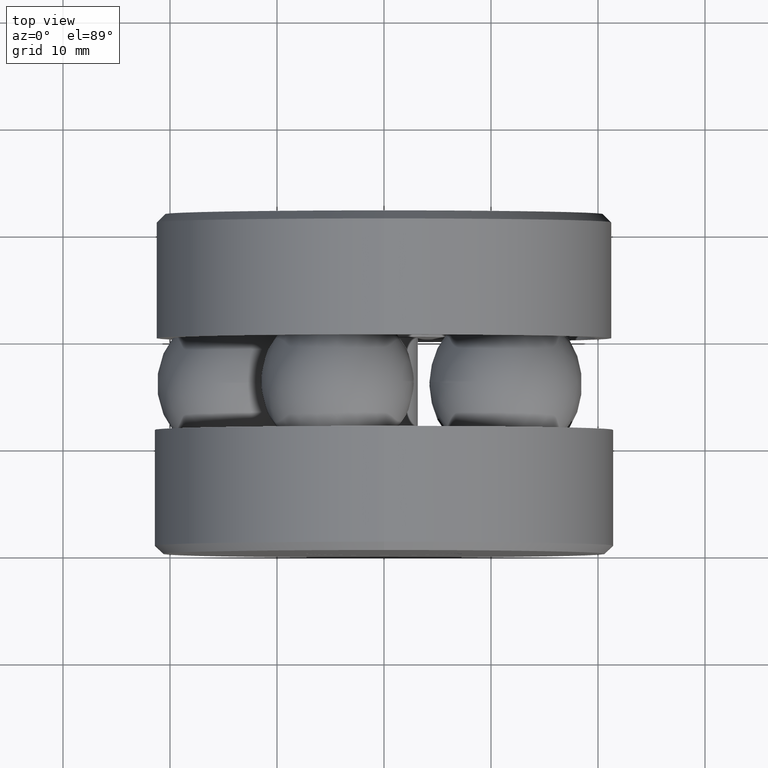
[diagram: clean part render]
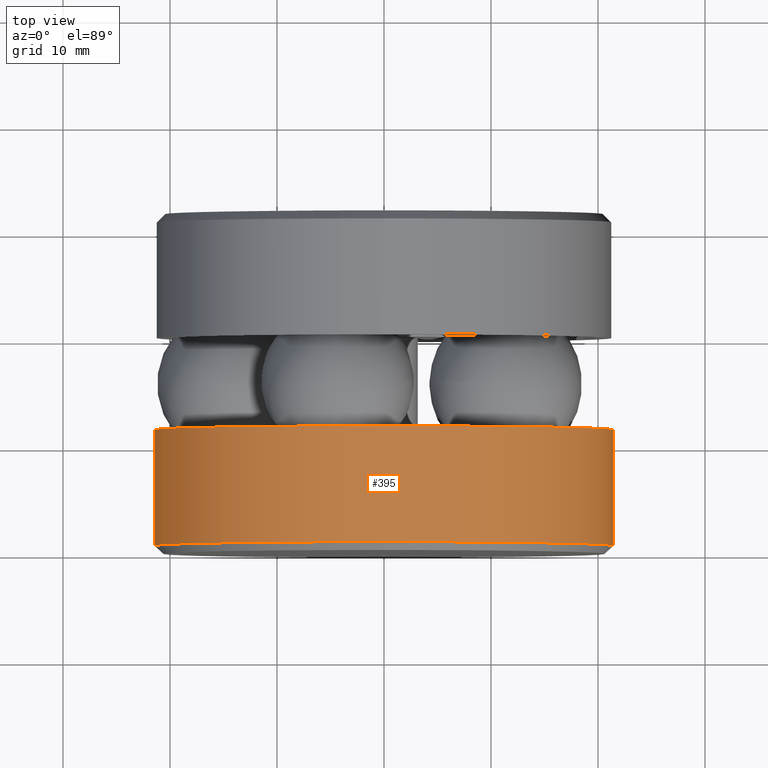
[diagram: same view with one face highlighted and labeled with its STEP entity id]
A machine part, top view. The second image highlights one B-rep face of the part: STEP entity #395.
In plain terms, the highlighted cylindrical surface (bore or boss wall) has radius 21.4312 mm, axis along (-0, 1, -0).
Its self-contained STEP definition (entity closure, byte-faithful):
#5 = VERTEX_POINT ( 'NONE', #49 ) ;
#13 = DIRECTION ( 'NONE',  ( 0.0000000000000000000, 0.0000000000000000000, 1.000000000000000000 ) ) ;
#16 = AXIS2_PLACEMENT_3D ( 'NONE', #292, #538, #308 ) ;
#18 = DIRECTION ( 'NONE',  ( -0.0000000000000000000, 1.000000000000000000, -0.0000000000000000000 ) ) ;
#49 = CARTESIAN_POINT ( 'NONE',  ( 0.0000000000000000000, 0.4563999999999996900, 0.8437500000000000000 ) ) ;
#60 = DIRECTION ( 'NONE',  ( -0.0000000000000000000, 1.000000000000000000, -0.0000000000000000000 ) ) ;
#105 = CYLINDRICAL_SURFACE ( 'NONE', #16, 0.8437500000000000000 ) ;
#110 = CARTESIAN_POINT ( 'NONE',  ( 0.0000000000000000000, 0.4563999999999996900, 0.0000000000000000000 ) ) ;
#166 = CARTESIAN_POINT ( 'NONE',  ( 0.0000000000000000000, 0.03000000000000013800, 0.0000000000000000000 ) ) ;
#170 = EDGE_LOOP ( 'NONE', ( #186 ) ) ;
#186 = ORIENTED_EDGE ( 'NONE', *, *, #199, .F. ) ;
#199 = EDGE_CURVE ( 'NONE', #5, #5, #206, .T. ) ;
#206 = CIRCLE ( 'NONE', #481, 0.8437500000000000000 ) ;
#238 = CIRCLE ( 'NONE', #528, 0.8437500000000000000 ) ;
#248 = VERTEX_POINT ( 'NONE', #285 ) ;
#264 = EDGE_LOOP ( 'NONE', ( #423 ) ) ;
#285 = CARTESIAN_POINT ( 'NONE',  ( 0.0000000000000000000, 0.03000000000000013800, 0.8437500000000000000 ) ) ;
#292 = CARTESIAN_POINT ( 'NONE',  ( 0.0000000000000000000, 0.0000000000000000000, 0.0000000000000000000 ) ) ;
#308 = DIRECTION ( 'NONE',  ( 0.0000000000000000000, 0.0000000000000000000, 1.000000000000000000 ) ) ;
#350 = FACE_OUTER_BOUND ( 'NONE', #170, .T. ) ;
#359 = FACE_OUTER_BOUND ( 'NONE', #264, .T. ) ;
#376 = DIRECTION ( 'NONE',  ( 0.0000000000000000000, 0.0000000000000000000, 1.000000000000000000 ) ) ;
#395 = ADVANCED_FACE ( 'NONE', ( #359, #350 ), #105, .T. ) ;
#414 = EDGE_CURVE ( 'NONE', #248, #248, #238, .T. ) ;
#423 = ORIENTED_EDGE ( 'NONE', *, *, #414, .T. ) ;
#481 = AXIS2_PLACEMENT_3D ( 'NONE', #110, #60, #376 ) ;
#528 = AXIS2_PLACEMENT_3D ( 'NONE', #166, #18, #13 ) ;
#538 = DIRECTION ( 'NONE',  ( -0.0000000000000000000, 1.000000000000000000, -0.0000000000000000000 ) ) ;